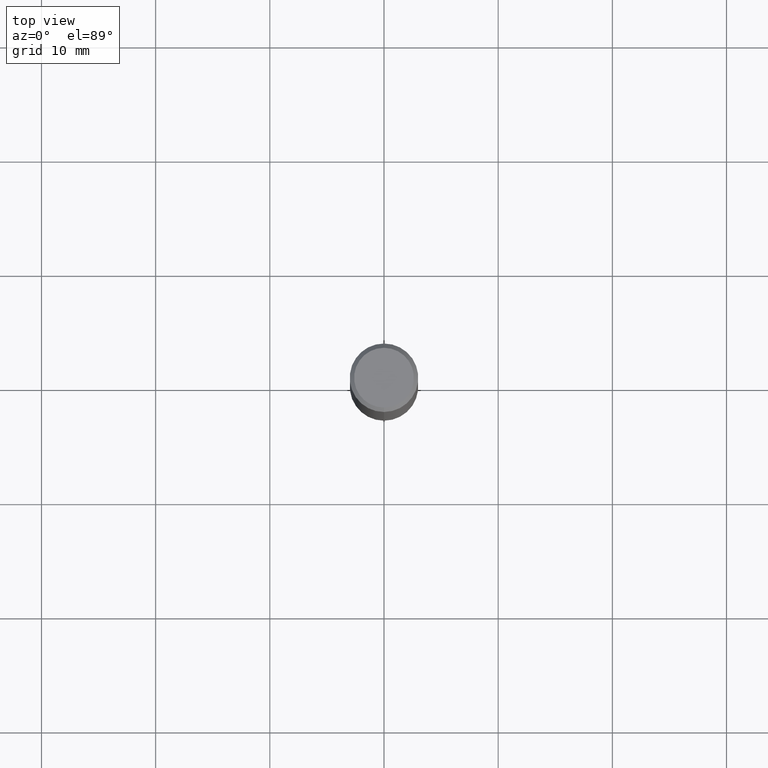
[diagram: clean part render]
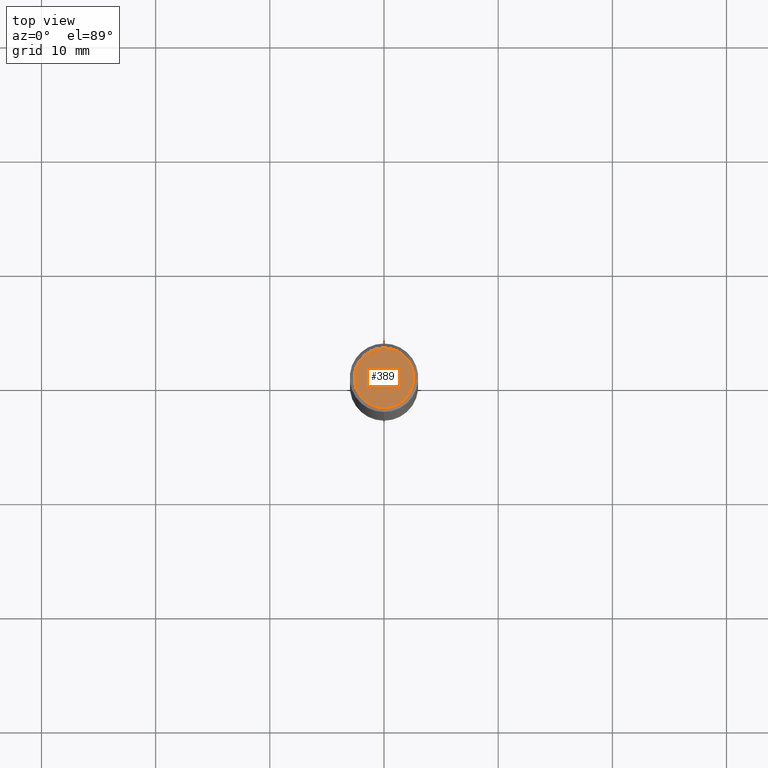
[diagram: same view with one face highlighted and labeled with its STEP entity id]
A machine part, top view. The second image highlights one B-rep face of the part: STEP entity #389.
In plain terms, the highlighted planar face has unit normal (0, -0, -1).
Its self-contained STEP definition (entity closure, byte-faithful):
#16 = CARTESIAN_POINT ( 'NONE',  ( 7.723156721521011834E-16, 0.1031000000000000111, -3.887509258146911569E-16 ) ) ;
#24 = CARTESIAN_POINT ( 'NONE',  ( 7.021496770469800463E-46, -1.005216981103814698E-31, -2.875135659208835554E-17 ) ) ;
#69 = DIRECTION ( 'NONE',  ( -2.445280224282367565E-29, 3.491751398861325958E-15, 1.000000000000000000 ) ) ;
#81 = PLANE ( 'NONE',  #484 ) ;
#105 = DIRECTION ( 'NONE',  ( 6.982962677686265922E-15, 1.000000000000000000, -3.491751398861325958E-15 ) ) ;
#109 = DIRECTION ( 'NONE',  ( 2.445280224282367285E-29, -3.491751398861325958E-15, -1.000000000000000000 ) ) ;
#142 = EDGE_CURVE ( 'NONE', #328, #408, #553, .T. ) ;
#191 = ORIENTED_EDGE ( 'NONE', *, *, #365, .T. ) ;
#217 = CARTESIAN_POINT ( 'NONE',  ( 7.021496770469800463E-46, -1.005216981103814698E-31, -2.875135659208835554E-17 ) ) ;
#224 = CIRCLE ( 'NONE', #521, 0.1031000000000000111 ) ;
#262 = DIRECTION ( 'NONE',  ( -6.982962677686265922E-15, -1.000000000000000000, 3.491751398861325958E-15 ) ) ;
#265 = DIRECTION ( 'NONE',  ( -2.445280224282367565E-29, 3.491751398861325958E-15, 1.000000000000000000 ) ) ;
#299 = EDGE_LOOP ( 'NONE', ( #406, #191 ) ) ;
#327 = CARTESIAN_POINT ( 'NONE',  ( -7.587710785535310407E-16, -0.1031000000000000111, 3.312482126305143595E-16 ) ) ;
#328 = VERTEX_POINT ( 'NONE', #16 ) ;
#331 = FACE_OUTER_BOUND ( 'NONE', #299, .T. ) ;
#365 = EDGE_CURVE ( 'NONE', #408, #328, #224, .T. ) ;
#372 = AXIS2_PLACEMENT_3D ( 'NONE', #217, #265, #262 ) ;
#373 = DIRECTION ( 'NONE',  ( -6.982962677686265922E-15, -1.000000000000000000, 3.491751398861325958E-15 ) ) ;
#389 = ADVANCED_FACE ( 'NONE', ( #331 ), #81, .F. ) ;
#406 = ORIENTED_EDGE ( 'NONE', *, *, #142, .T. ) ;
#408 = VERTEX_POINT ( 'NONE', #327 ) ;
#484 = AXIS2_PLACEMENT_3D ( 'NONE', #510, #109, #105 ) ;
#510 = CARTESIAN_POINT ( 'NONE',  ( 7.199434520694541042E-16, 0.1031000000000000111, -1.353385480730238890E-16 ) ) ;
#521 = AXIS2_PLACEMENT_3D ( 'NONE', #24, #69, #373 ) ;
#553 = CIRCLE ( 'NONE', #372, 0.1031000000000000111 ) ;